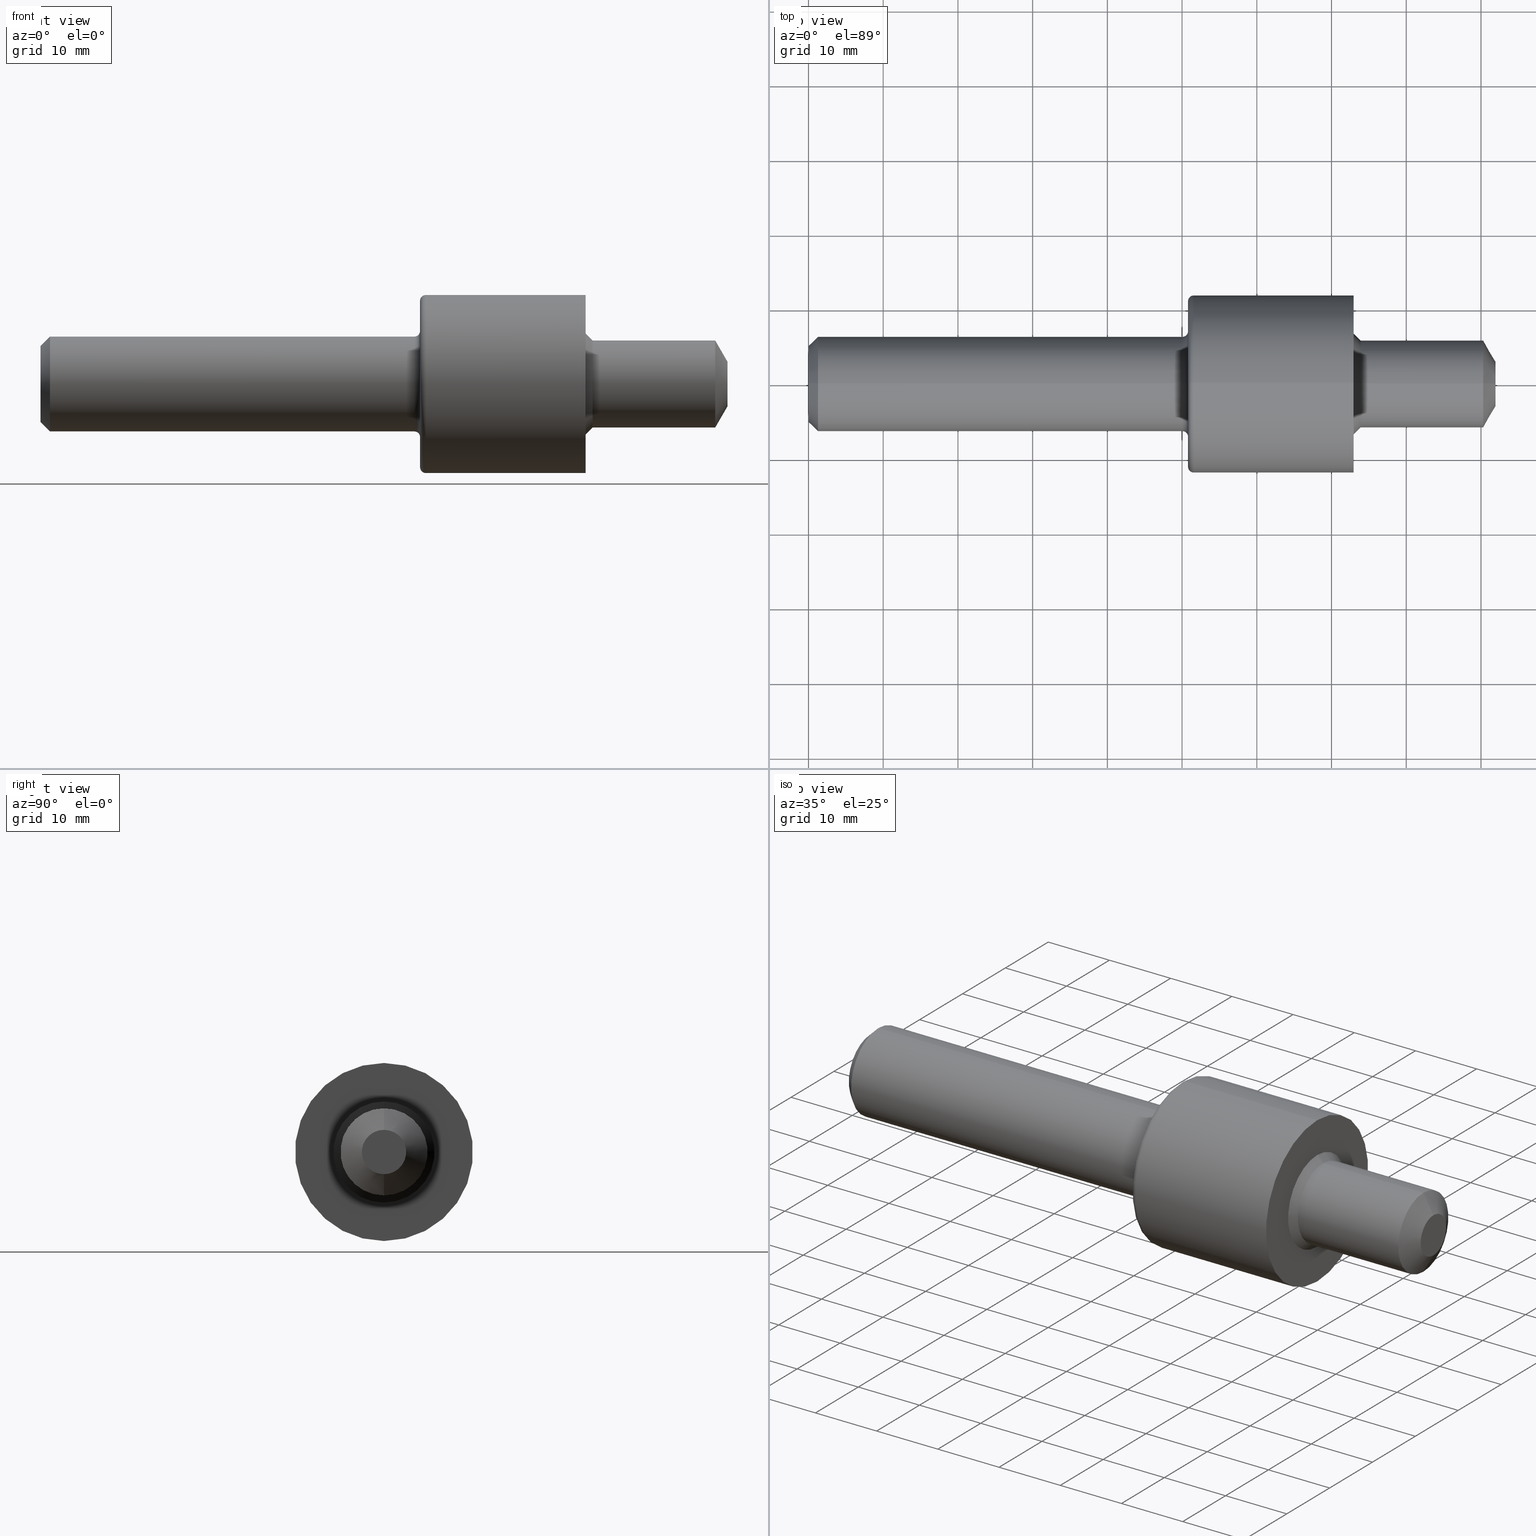
[diagram: canonical four-view strip — front | top / right | iso, engineering-drawing reading convention]
A machine part, canonical four-view strip (front | top / right | iso — engineering-drawing reading convention). The complete STEP part file that produces these views, byte-faithful:
ISO-10303-21;
HEADER;
FILE_DESCRIPTION (( 'STEP AP214' ),
    '1' );
FILE_NAME ('PT-BSPP-1_4.STEP',
    '2019-03-27T22:34:53',
    ( '' ),
    ( '' ),
    'SwSTEP 2.0',
    'SolidWorks 2018',
    '' );
FILE_SCHEMA (( 'AUTOMOTIVE_DESIGN' ));
ENDSEC;

DATA;
#1 = ADVANCED_FACE ( 'NONE', ( #53 ), #61, .T. ) ;
#2 = AXIS2_PLACEMENT_3D ( 'NONE', #414, #139, #249 ) ;
#3 = AXIS2_PLACEMENT_3D ( 'NONE', #476, #335, #393 ) ;
#4 = EDGE_CURVE ( 'NONE', #401, #381, #480, .T. ) ;
#5 = ADVANCED_FACE ( 'NONE', ( #369, #396 ), #73, .F. ) ;
#6 = LINE ( 'NONE', #479, #357 ) ;
#7 = CIRCLE ( 'NONE', #193, 0.1169166975080224158 ) ;
#8 = AXIS2_PLACEMENT_3D ( 'NONE', #16, #373, #233 ) ;
#9 = DIRECTION ( 'NONE',  ( -1.000000000000000000, -0.0000000000000000000, -0.0000000000000000000 ) ) ;
#10 = ADVANCED_FACE ( 'NONE', ( #262 ), #27, .T. ) ;
#11 = EDGE_CURVE ( 'NONE', #263, #323, #510, .T. ) ;
#12 = CARTESIAN_POINT ( 'NONE',  ( 0.0000000000000000000, 0.0000000000000000000, 0.0000000000000000000 ) ) ;
#13 = ADVANCED_FACE ( 'NONE', ( #382 ), #319, .F. ) ;
#14 = CARTESIAN_POINT ( 'NONE',  ( 2.871999999999999886, 5.743593488001086150E-17, -0.4689999999999999725 ) ) ;
#15 = AXIS2_PLACEMENT_3D ( 'NONE', #169, #213, #267 ) ;
#16 = CARTESIAN_POINT ( 'NONE',  ( 0.0000000000000000000, 0.0000000000000000000, 0.0000000000000000000 ) ) ;
#17 = ADVANCED_FACE ( 'NONE', ( #197, #415 ), #372, .F. ) ;
#18 = CIRCLE ( 'NONE', #92, 0.2498499999999999888 ) ;
#19 = ORIENTED_EDGE ( 'NONE', *, *, #227, .F. ) ;
#20 = DIRECTION ( 'NONE',  ( 0.0000000000000000000, -1.224646799147352221E-16, 1.000000000000000000 ) ) ;
#21 = DIRECTION ( 'NONE',  ( 0.0000000000000000000, 0.0000000000000000000, 1.000000000000000000 ) ) ;
#22 = ADVANCED_FACE ( 'NONE', ( #314 ), #124, .T. ) ;
#23 = EDGE_CURVE ( 'NONE', #385, #137, #441, .T. ) ;
#24 = AXIS2_PLACEMENT_3D ( 'NONE', #59, #150, #397 ) ;
#25 = CIRCLE ( 'NONE', #310, 0.2665000000000000147 ) ;
#26 = DIRECTION ( 'NONE',  ( 0.0000000000000000000, 0.0000000000000000000, 1.000000000000000000 ) ) ;
#27 = CONICAL_SURFACE ( 'NONE', #309, 0.1169166975080224158, 1.047197551196600074 ) ;
#28 = EDGE_LOOP ( 'NONE', ( #497, #289, #306, #259 ) ) ;
#29 = CARTESIAN_POINT ( 'NONE',  ( 3.555000000000000160, 2.810564404043175550E-17, -0.2295000000000000095 ) ) ;
#30 = ADVANCED_FACE ( 'NONE', ( #551 ), #295, .T. ) ;
#31 = ORIENTED_EDGE ( 'NONE', *, *, #463, .F. ) ;
#32 = SHAPE_DEFINITION_REPRESENTATION ( #214, #478 ) ;
#33 = CARTESIAN_POINT ( 'NONE',  ( 0.0000000000000000000, 0.0000000000000000000, 0.0000000000000000000 ) ) ;
#34 = CARTESIAN_POINT ( 'NONE',  ( 2.871999999999999886, 0.0000000000000000000, 0.0000000000000000000 ) ) ;
#35 = ORIENTED_EDGE ( 'NONE', *, *, #399, .F. ) ;
#36 = AXIS2_PLACEMENT_3D ( 'NONE', #173, #421, #559 ) ;
#37 = DIRECTION ( 'NONE',  ( 0.0000000000000000000, 0.0000000000000000000, -1.000000000000000000 ) ) ;
#38 = ORIENTED_EDGE ( 'NONE', *, *, #339, .T. ) ;
#39 = DIRECTION ( 'NONE',  ( -0.0000000000000000000, 0.0000000000000000000, 1.000000000000000000 ) ) ;
#40 = ORIENTED_EDGE ( 'NONE', *, *, #227, .T. ) ;
#41 = PLANE ( 'NONE',  #543 ) ;
#42 = ORIENTED_EDGE ( 'NONE', *, *, #220, .T. ) ;
#43 = DIRECTION ( 'NONE',  ( 0.0000000000000000000, 0.0000000000000000000, 1.000000000000000000 ) ) ;
#44 = AXIS2_PLACEMENT_3D ( 'NONE', #184, #301, #96 ) ;
#45 = CIRCLE ( 'NONE', #437, 0.2665000000000000147 ) ;
#46 = ADVANCED_FACE ( 'NONE', ( #312 ), #168, .T. ) ;
#47 = DIRECTION ( 'NONE',  ( 0.0000000000000000000, 0.0000000000000000000, 1.000000000000000000 ) ) ;
#48 = CARTESIAN_POINT ( 'NONE',  ( 0.05000000000000000278, 0.0000000000000000000, 0.0000000000000000000 ) ) ;
#49 = ORIENTED_EDGE ( 'NONE', *, *, #11, .F. ) ;
#50 = ADVANCED_FACE ( 'NONE', ( #192 ), #104, .T. ) ;
#51 = VERTEX_POINT ( 'NONE', #255 ) ;
#52 = CARTESIAN_POINT ( 'NONE',  ( 2.000000000000000000, 3.427174067413867695E-17, -0.2798499999999999877 ) ) ;
#53 = FACE_OUTER_BOUND ( 'NONE', #405, .T. ) ;
#54 = ORIENTED_EDGE ( 'NONE', *, *, #102, .T. ) ;
#55 = EDGE_CURVE ( 'NONE', #137, #385, #7, .T. ) ;
#56 = STYLED_ITEM ( 'NONE', ( #293 ), #478 ) ;
#57 = DIRECTION ( 'NONE',  ( 1.000000000000000000, 0.0000000000000000000, 0.0000000000000000000 ) ) ;
#58 = ADVANCED_FACE ( 'NONE', ( #509 ), #400, .T. ) ;
#59 = CARTESIAN_POINT ( 'NONE',  ( 2.000000000000000000, 0.0000000000000000000, 0.0000000000000000000 ) ) ;
#60 = ORIENTED_EDGE ( 'NONE', *, *, #246, .F. ) ;
#61 = TOROIDAL_SURFACE ( 'NONE', #44, 0.4389999999999999458, 0.02999999999999998848 ) ;
#62 = SURFACE_SIDE_STYLE ('',( #471 ) ) ;
#63 = CARTESIAN_POINT ( 'NONE',  ( 2.909000000000002029, 0.0000000000000000000, 0.2295000000000000095 ) ) ;
#64 = APPLICATION_CONTEXT ( 'automotive_design' ) ;
#65 = SURFACE_SIDE_STYLE ('',( #519 ) ) ;
#67 = CLOSED_SHELL ( 'NONE', ( #10, #58, #162, #50, #386, #348, #70, #557, #465, #534, #454, #13, #5, #1, #22, #17, #30, #552, #46, #85 ) ) ;
#66 = AXIS2_PLACEMENT_3D ( 'NONE', #76, #473, #226 ) ;
#68 = ORIENTED_EDGE ( 'NONE', *, *, #115, .T. ) ;
#69 = ORIENTED_EDGE ( 'NONE', *, *, #320, .F. ) ;
#70 = ADVANCED_FACE ( 'NONE', ( #241 ), #469, .T. ) ;
#71 =( CONVERSION_BASED_UNIT ( 'INCH', #439 ) LENGTH_UNIT ( ) NAMED_UNIT ( #101 ) );
#72 = CIRCLE ( 'NONE', #218, 0.2498499999999999888 ) ;
#73 = PLANE ( 'NONE',  #36 ) ;
#74 = VERTEX_POINT ( 'NONE', #547 ) ;
#75 = EDGE_CURVE ( 'NONE', #323, #263, #223, .T. ) ;
#76 = CARTESIAN_POINT ( 'NONE',  ( 2.029999999999999805, 0.0000000000000000000, 0.4389999999999999458 ) ) ;
#77 = AXIS2_PLACEMENT_3D ( 'NONE', #198, #174, #539 ) ;
#78 = ORIENTED_EDGE ( 'NONE', *, *, #55, .F. ) ;
#79 = DIRECTION ( 'NONE',  ( -1.000000000000000000, -0.0000000000000000000, -0.0000000000000000000 ) ) ;
#80 = AXIS2_PLACEMENT_3D ( 'NONE', #294, #321, #541 ) ;
#81 = CARTESIAN_POINT ( 'NONE',  ( 0.0000000000000000000, 0.0000000000000000000, 0.0000000000000000000 ) ) ;
#82 = FACE_OUTER_BOUND ( 'NONE', #346, .T. ) ;
#83 = ORIENTED_EDGE ( 'NONE', *, *, #87, .F. ) ;
#84 = DIRECTION ( 'NONE',  ( -1.000000000000000000, -0.0000000000000000000, -0.0000000000000000000 ) ) ;
#85 = ADVANCED_FACE ( 'NONE', ( #361 ), #41, .F. ) ;
#86 = CARTESIAN_POINT ( 'NONE',  ( 0.0000000000000000000, 0.0000000000000000000, 0.0000000000000000000 ) ) ;
#87 = EDGE_CURVE ( 'NONE', #383, #88, #98, .T. ) ;
#88 = VERTEX_POINT ( 'NONE', #311 ) ;
#89 = VERTEX_POINT ( 'NONE', #222 ) ;
#90 = CARTESIAN_POINT ( 'NONE',  ( 2.000000000000000000, 0.0000000000000000000, 0.0000000000000000000 ) ) ;
#91 = PRODUCT ( 'PT-BSPP-1_4', 'PT-BSPP-1_4', '', ( #356 ) ) ;
#92 = AXIS2_PLACEMENT_3D ( 'NONE', #403, #291, #546 ) ;
#93 = CARTESIAN_POINT ( 'NONE',  ( 3.555000000000000160, 0.0000000000000000000, 0.0000000000000000000 ) ) ;
#94 = CARTESIAN_POINT ( 'NONE',  ( 2.909000000000002029, 0.0000000000000000000, 0.0000000000000000000 ) ) ;
#95 = ORIENTED_EDGE ( 'NONE', *, *, #313, .T. ) ;
#96 = DIRECTION ( 'NONE',  ( 0.0000000000000000000, 0.0000000000000000000, 1.000000000000000000 ) ) ;
#97 = EDGE_CURVE ( 'NONE', #401, #270, #430, .T. ) ;
#98 = CIRCLE ( 'NONE', #211, 0.2498499999999999888 ) ;
#99 = DIRECTION ( 'NONE',  ( 0.0000000000000000000, 0.0000000000000000000, 1.000000000000000000 ) ) ;
#100 = EDGE_LOOP ( 'NONE', ( #556, #95, #154, #364 ) ) ;
#101 = DIMENSIONAL_EXPONENTS ( 1.000000000000000000, 0.0000000000000000000, 0.0000000000000000000, 0.0000000000000000000, 0.0000000000000000000, 0.0000000000000000000, 0.0000000000000000000 ) ;
#102 = EDGE_CURVE ( 'NONE', #527, #248, #210, .T. ) ;
#103 = ORIENTED_EDGE ( 'NONE', *, *, #152, .F. ) ;
#104 = CYLINDRICAL_SURFACE ( 'NONE', #503, 0.4689999999999999725 ) ;
#105 = DIMENSIONAL_EXPONENTS ( 1.000000000000000000, 0.0000000000000000000, 0.0000000000000000000, 0.0000000000000000000, 0.0000000000000000000, 0.0000000000000000000, 0.0000000000000000000 ) ;
#106 = DIRECTION ( 'NONE',  ( -1.000000000000000000, -0.0000000000000000000, -0.0000000000000000000 ) ) ;
#107 = VERTEX_POINT ( 'NONE', #243 ) ;
#108 = ORIENTED_EDGE ( 'NONE', *, *, #484, .F. ) ;
#109 = EDGE_LOOP ( 'NONE', ( #129, #119, #277, #194 ) ) ;
#110 = EDGE_CURVE ( 'NONE', #107, #381, #133, .T. ) ;
#111 = CARTESIAN_POINT ( 'NONE',  ( 0.05000000000000000278, 3.059780027669661931E-17, 0.2498499999999999888 ) ) ;
#112 = AXIS2_PLACEMENT_3D ( 'NONE', #81, #302, #460 ) ;
#113 = LINE ( 'NONE', #161, #410 ) ;
#114 = FILL_AREA_STYLE_COLOUR ( '', #336 ) ;
#115 = EDGE_CURVE ( 'NONE', #272, #89, #341, .T. ) ;
#116 = ORIENTED_EDGE ( 'NONE', *, *, #376, .T. ) ;
#117 = DIRECTION ( 'NONE',  ( 0.0000000000000000000, 0.0000000000000000000, 1.000000000000000000 ) ) ;
#118 = APPLICATION_PROTOCOL_DEFINITION ( 'draft international standard', 'automotive_design', 1998, #64 ) ;
#119 = ORIENTED_EDGE ( 'NONE', *, *, #470, .T. ) ;
#120 = LINE ( 'NONE', #254, #328 ) ;
#121 = DIRECTION ( 'NONE',  ( 1.000000000000000000, 0.0000000000000000000, 0.0000000000000000000 ) ) ;
#122 = ORIENTED_EDGE ( 'NONE', *, *, #389, .T. ) ;
#123 = DIRECTION ( 'NONE',  ( -1.000000000000000000, -0.0000000000000000000, -0.0000000000000000000 ) ) ;
#124 = CYLINDRICAL_SURFACE ( 'NONE', #251, 0.4689999999999999725 ) ;
#125 = CARTESIAN_POINT ( 'NONE',  ( 3.620000000000000107, 0.1169166975080224158, 0.0000000000000000000 ) ) ;
#126 = VERTEX_POINT ( 'NONE', #409 ) ;
#127 = DIRECTION ( 'NONE',  ( -1.000000000000000000, -0.0000000000000000000, -0.0000000000000000000 ) ) ;
#128 = DIRECTION ( 'NONE',  ( 1.000000000000000000, 0.0000000000000000000, 0.0000000000000000000 ) ) ;
#129 = ORIENTED_EDGE ( 'NONE', *, *, #463, .T. ) ;
#130 = DIRECTION ( 'NONE',  ( -1.000000000000000000, -0.0000000000000000000, -0.0000000000000000000 ) ) ;
#131 = DIRECTION ( 'NONE',  ( -1.000000000000000000, -0.0000000000000000000, -0.0000000000000000000 ) ) ;
#132 = DIRECTION ( 'NONE',  ( 0.0000000000000000000, 0.0000000000000000000, 1.000000000000000000 ) ) ;
#133 = CIRCLE ( 'NONE', #164, 0.4689999999999999725 ) ;
#134 = AXIS2_PLACEMENT_3D ( 'NONE', #490, #417, #318 ) ;
#135 = MECHANICAL_DESIGN_GEOMETRIC_PRESENTATION_REPRESENTATION (  '', ( #280 ), #171 ) ;
#136 = ORIENTED_EDGE ( 'NONE', *, *, #196, .F. ) ;
#137 = VERTEX_POINT ( 'NONE', #440 ) ;
#138 = CIRCLE ( 'NONE', #380, 0.2498499999999999888 ) ;
#139 = DIRECTION ( 'NONE',  ( -1.000000000000000000, -0.0000000000000000000, -0.0000000000000000000 ) ) ;
#140 = EDGE_CURVE ( 'NONE', #381, #51, #494, .T. ) ;
#141 = DIMENSIONAL_EXPONENTS ( 1.000000000000000000, 0.0000000000000000000, 0.0000000000000000000, 0.0000000000000000000, 0.0000000000000000000, 0.0000000000000000000, 0.0000000000000000000 ) ;
#142 = EDGE_LOOP ( 'NONE', ( #69, #31, #40, #54 ) ) ;
#143 = DIRECTION ( 'NONE',  ( 0.0000000000000000000, 0.0000000000000000000, 1.000000000000000000 ) ) ;
#144 = DIRECTION ( 'NONE',  ( -1.000000000000000000, -0.0000000000000000000, -0.0000000000000000000 ) ) ;
#145 = AXIS2_PLACEMENT_3D ( 'NONE', #86, #299, #47 ) ;
#146 = DIRECTION ( 'NONE',  ( -0.4999999999999979461, 1.060575238724908024E-16, -0.8660254037844397068 ) ) ;
#147 = EDGE_LOOP ( 'NONE', ( #296, #436, #42, #202 ) ) ;
#148 = EDGE_CURVE ( 'NONE', #381, #107, #353, .T. ) ;
#149 = EDGE_LOOP ( 'NONE', ( #35, #179, #38, #350 ) ) ;
#150 = DIRECTION ( 'NONE',  ( -1.000000000000000000, -0.0000000000000000000, -0.0000000000000000000 ) ) ;
#151 = VECTOR ( 'NONE', #537, 39.37007874015748143 ) ;
#152 = EDGE_CURVE ( 'NONE', #504, #207, #487, .T. ) ;
#153 = ORIENTED_EDGE ( 'NONE', *, *, #115, .F. ) ;
#154 = ORIENTED_EDGE ( 'NONE', *, *, #269, .F. ) ;
#155 = TOROIDAL_SURFACE ( 'NONE', #362, 0.4389999999999999458, 0.02999999999999998848 ) ;
#156 = VECTOR ( 'NONE', #333, 39.37007874015748143 ) ;
#157 = EDGE_CURVE ( 'NONE', #270, #401, #166, .T. ) ;
#158 = EDGE_LOOP ( 'NONE', ( #544, #379, #521, #60 ) ) ;
#159 = FACE_OUTER_BOUND ( 'NONE', #158, .T. ) ;
#160 = ORIENTED_EDGE ( 'NONE', *, *, #75, .T. ) ;
#161 = CARTESIAN_POINT ( 'NONE',  ( 0.0000000000000000000, 2.810564404043175550E-17, -0.2295000000000000095 ) ) ;
#162 = ADVANCED_FACE ( 'NONE', ( #305 ), #288, .T. ) ;
#163 = ORIENTED_EDGE ( 'NONE', *, *, #110, .T. ) ;
#164 = AXIS2_PLACEMENT_3D ( 'NONE', #514, #495, #502 ) ;
#165 = CIRCLE ( 'NONE', #445, 0.2295000000000000095 ) ;
#166 = CIRCLE ( 'NONE', #134, 0.4689999999999999725 ) ;
#167 = ORIENTED_EDGE ( 'NONE', *, *, #157, .F. ) ;
#168 = CONICAL_SURFACE ( 'NONE', #475, 0.1169166975080224158, 1.047197551196600074 ) ;
#169 = CARTESIAN_POINT ( 'NONE',  ( 0.0000000000000000000, 0.0000000000000000000, 0.0000000000000000000 ) ) ;
#170 = CIRCLE ( 'NONE', #283, 0.2798499999999999877 ) ;
#171 =( GEOMETRIC_REPRESENTATION_CONTEXT ( 3 ) GLOBAL_UNCERTAINTY_ASSIGNED_CONTEXT ( ( #281 ) ) GLOBAL_UNIT_ASSIGNED_CONTEXT ( ( #524, #529, #498 ) ) REPRESENTATION_CONTEXT ( 'NONE', 'WORKASPACE' ) );
#172 = CARTESIAN_POINT ( 'NONE',  ( 0.05000000000000000278, 3.059780027669661931E-17, 0.2498499999999999888 ) ) ;
#173 = CARTESIAN_POINT ( 'NONE',  ( 2.000000000000000000, 0.4389999999999999458, 0.0000000000000000000 ) ) ;
#174 = DIRECTION ( 'NONE',  ( -1.000000000000000000, -0.0000000000000000000, -0.0000000000000000000 ) ) ;
#175 = AXIS2_PLACEMENT_3D ( 'NONE', #512, #131, #538 ) ;
#176 = VECTOR ( 'NONE', #183, 39.37007874015748143 ) ;
#177 = ORIENTED_EDGE ( 'NONE', *, *, #349, .F. ) ;
#178 = CARTESIAN_POINT ( 'NONE',  ( 0.0000000000000000000, 0.0000000000000000000, 0.2295000000000000095 ) ) ;
#179 = ORIENTED_EDGE ( 'NONE', *, *, #152, .T. ) ;
#180 = ORIENTED_EDGE ( 'NONE', *, *, #438, .F. ) ;
#181 = EDGE_LOOP ( 'NONE', ( #428, #266 ) ) ;
#182 = CARTESIAN_POINT ( 'NONE',  ( 3.620000000000000107, 0.0000000000000000000, 0.0000000000000000000 ) ) ;
#183 = DIRECTION ( 'NONE',  ( -1.000000000000000000, -0.0000000000000000000, -0.0000000000000000000 ) ) ;
#184 = CARTESIAN_POINT ( 'NONE',  ( 2.029999999999999805, 0.0000000000000000000, 0.0000000000000000000 ) ) ;
#185 = ORIENTED_EDGE ( 'NONE', *, *, #332, .T. ) ;
#186 = AXIS2_PLACEMENT_3D ( 'NONE', #429, #513, #39 ) ;
#187 = EDGE_CURVE ( 'NONE', #270, #107, #188, .T. ) ;
#188 = LINE ( 'NONE', #404, #422 ) ;
#189 = ORIENTED_EDGE ( 'NONE', *, *, #339, .F. ) ;
#190 = ORIENTED_EDGE ( 'NONE', *, *, #140, .T. ) ;
#191 = AXIS2_PLACEMENT_3D ( 'NONE', #458, #121, #464 ) ;
#192 = FACE_OUTER_BOUND ( 'NONE', #359, .T. ) ;
#193 = AXIS2_PLACEMENT_3D ( 'NONE', #508, #199, #418 ) ;
#194 = ORIENTED_EDGE ( 'NONE', *, *, #365, .F. ) ;
#195 = DIRECTION ( 'NONE',  ( -0.0000000000000000000, 1.000000000000000000, 1.224646799147353207E-16 ) ) ;
#196 = EDGE_CURVE ( 'NONE', #385, #272, #6, .T. ) ;
#197 = FACE_OUTER_BOUND ( 'NONE', #435, .T. ) ;
#198 = CARTESIAN_POINT ( 'NONE',  ( 0.0000000000000000000, 0.0000000000000000000, 0.0000000000000000000 ) ) ;
#199 = DIRECTION ( 'NONE',  ( -1.000000000000000000, -0.0000000000000000000, -0.0000000000000000000 ) ) ;
#200 = FILL_AREA_STYLE_COLOUR ( '', #229 ) ;
#201 = AXIS2_PLACEMENT_3D ( 'NONE', #354, #128, #278 ) ;
#202 = ORIENTED_EDGE ( 'NONE', *, *, #246, .T. ) ;
#203 = DIRECTION ( 'NONE',  ( 0.0000000000000000000, 0.0000000000000000000, 1.000000000000000000 ) ) ;
#204 = DIRECTION ( 'NONE',  ( -1.000000000000000000, -0.0000000000000000000, -0.0000000000000000000 ) ) ;
#205 =( LENGTH_UNIT ( ) NAMED_UNIT ( * ) SI_UNIT ( $, .METRE. ) );
#206 = CONICAL_SURFACE ( 'NONE', #201, 0.2498499999999999888, 0.7853981633974463916 ) ;
#207 = VERTEX_POINT ( 'NONE', #322 ) ;
#208 = DIRECTION ( 'NONE',  ( 0.0000000000000000000, 0.0000000000000000000, 1.000000000000000000 ) ) ;
#209 = DIRECTION ( 'NONE',  ( 0.0000000000000000000, 0.0000000000000000000, 1.000000000000000000 ) ) ;
#210 = CIRCLE ( 'NONE', #419, 0.2798499999999999877 ) ;
#211 = AXIS2_PLACEMENT_3D ( 'NONE', #232, #230, #489 ) ;
#212 = EDGE_LOOP ( 'NONE', ( #525, #68, #122, #103 ) ) ;
#213 = DIRECTION ( 'NONE',  ( -1.000000000000000000, -0.0000000000000000000, -0.0000000000000000000 ) ) ;
#214 = PRODUCT_DEFINITION_SHAPE ( 'NONE', 'NONE',  #459 ) ;
#215 = VERTEX_POINT ( 'NONE', #265 ) ;
#216 = DIRECTION ( 'NONE',  ( 0.0000000000000000000, 0.0000000000000000000, 1.000000000000000000 ) ) ;
#217 = ORIENTED_EDGE ( 'NONE', *, *, #187, .F. ) ;
#218 = AXIS2_PLACEMENT_3D ( 'NONE', #48, #560, #216 ) ;
#219 = DIRECTION ( 'NONE',  ( 0.0000000000000000000, 0.0000000000000000000, 1.000000000000000000 ) ) ;
#220 = EDGE_CURVE ( 'NONE', #323, #215, #516, .T. ) ;
#221 = ORIENTED_EDGE ( 'NONE', *, *, #399, .T. ) ;
#222 = CARTESIAN_POINT ( 'NONE',  ( 3.555000000000000160, 0.0000000000000000000, 0.2295000000000000095 ) ) ;
#223 = CIRCLE ( 'NONE', #145, 0.1998500000000001942 ) ;
#224 = FACE_OUTER_BOUND ( 'NONE', #28, .T. ) ;
#225 = UNCERTAINTY_MEASURE_WITH_UNIT (LENGTH_MEASURE( 1.000000000000000082E-05 ), #377, 'distance_accuracy_value', 'NONE');
#226 = DIRECTION ( 'NONE',  ( 0.0000000000000000000, 0.0000000000000000000, -1.000000000000000000 ) ) ;
#227 = EDGE_CURVE ( 'NONE', #88, #527, #481, .T. ) ;
#228 = PRESENTATION_LAYER_ASSIGNMENT (  '', '', ( #280 ) ) ;
#229 = COLOUR_RGB ( '',0.7529411764705882248, 0.7529411764705882248, 0.7529411764705882248 ) ;
#230 = DIRECTION ( 'NONE',  ( -1.000000000000000000, -0.0000000000000000000, -0.0000000000000000000 ) ) ;
#231 = ORIENTED_EDGE ( 'NONE', *, *, #438, .T. ) ;
#232 = CARTESIAN_POINT ( 'NONE',  ( 1.969999999999999973, 0.0000000000000000000, 0.0000000000000000000 ) ) ;
#233 = DIRECTION ( 'NONE',  ( 1.000000000000000000, 0.0000000000000000000, 0.0000000000000000000 ) ) ;
#234 = DIRECTION ( 'NONE',  ( 0.7071067811865489050, 8.659560562354915602E-17, 0.7071067811865461294 ) ) ;
#235 = ORIENTED_EDGE ( 'NONE', *, *, #548, .F. ) ;
#236 = DIRECTION ( 'NONE',  ( -1.000000000000000000, -0.0000000000000000000, -0.0000000000000000000 ) ) ;
#237 = AXIS2_PLACEMENT_3D ( 'NONE', #342, #518, #37 ) ;
#238 = DIRECTION ( 'NONE',  ( -1.000000000000000000, -0.0000000000000000000, -0.0000000000000000000 ) ) ;
#239 = EDGE_LOOP ( 'NONE', ( #78, #523 ) ) ;
#240 = ORIENTED_EDGE ( 'NONE', *, *, #269, .T. ) ;
#241 = FACE_OUTER_BOUND ( 'NONE', #109, .T. ) ;
#242 =( NAMED_UNIT ( * ) SI_UNIT ( $, .STERADIAN. ) SOLID_ANGLE_UNIT ( ) );
#243 = CARTESIAN_POINT ( 'NONE',  ( 2.029999999999999805, 5.743593488001086150E-17, -0.4689999999999999725 ) ) ;
#244 = DIRECTION ( 'NONE',  ( -1.000000000000000000, -0.0000000000000000000, -0.0000000000000000000 ) ) ;
#245 =( LENGTH_UNIT ( ) NAMED_UNIT ( * ) SI_UNIT ( $, .METRE. ) );
#246 = EDGE_CURVE ( 'NONE', #215, #562, #72, .T. ) ;
#247 = DIRECTION ( 'NONE',  ( -1.000000000000000000, -0.0000000000000000000, -0.0000000000000000000 ) ) ;
#248 = VERTEX_POINT ( 'NONE', #52 ) ;
#249 = DIRECTION ( 'NONE',  ( 0.0000000000000000000, 0.0000000000000000000, 1.000000000000000000 ) ) ;
#250 = SURFACE_STYLE_USAGE ( .BOTH. , #62 ) ;
#251 = AXIS2_PLACEMENT_3D ( 'NONE', #33, #505, #219 ) ;
#252 = PRESENTATION_LAYER_ASSIGNMENT (  '', '', ( #56 ) ) ;
#253 = ORIENTED_EDGE ( 'NONE', *, *, #157, .T. ) ;
#254 = CARTESIAN_POINT ( 'NONE',  ( 0.0000000000000000000, 0.0000000000000000000, 0.2498499999999999888 ) ) ;
#255 = CARTESIAN_POINT ( 'NONE',  ( 2.000000000000000000, 0.0000000000000000000, 0.4389999999999999458 ) ) ;
#256 = CARTESIAN_POINT ( 'NONE',  ( 0.0000000000000000000, 0.0000000000000000000, -0.1998500000000001942 ) ) ;
#257 = CARTESIAN_POINT ( 'NONE',  ( 3.620000000000000107, 0.0000000000000000000, 0.0000000000000000000 ) ) ;
#258 = EDGE_CURVE ( 'NONE', #562, #215, #138, .T. ) ;
#259 = ORIENTED_EDGE ( 'NONE', *, *, #140, .F. ) ;
#260 = DIRECTION ( 'NONE',  ( 0.0000000000000000000, 0.0000000000000000000, 1.000000000000000000 ) ) ;
#261 = FACE_OUTER_BOUND ( 'NONE', #212, .T. ) ;
#262 = FACE_OUTER_BOUND ( 'NONE', #424, .T. ) ;
#263 = VERTEX_POINT ( 'NONE', #499 ) ;
#264 = EDGE_CURVE ( 'NONE', #51, #303, #457, .T. ) ;
#265 = CARTESIAN_POINT ( 'NONE',  ( 0.05000000000000000278, 0.0000000000000000000, -0.2498499999999999888 ) ) ;
#266 = ORIENTED_EDGE ( 'NONE', *, *, #432, .T. ) ;
#267 = DIRECTION ( 'NONE',  ( 0.0000000000000000000, 0.0000000000000000000, 1.000000000000000000 ) ) ;
#268 = ORIENTED_EDGE ( 'NONE', *, *, #55, .T. ) ;
#269 = EDGE_CURVE ( 'NONE', #207, #504, #374, .T. ) ;
#270 = VERTEX_POINT ( 'NONE', #14 ) ;
#271 = VECTOR ( 'NONE', #462, 39.37007874015748143 ) ;
#272 = VERTEX_POINT ( 'NONE', #29 ) ;
#273 = ORIENTED_EDGE ( 'NONE', *, *, #187, .T. ) ;
#274 = CARTESIAN_POINT ( 'NONE',  ( 2.909000000000002029, 2.810564404043175550E-17, -0.2295000000000000095 ) ) ;
#275 = CARTESIAN_POINT ( 'NONE',  ( 2.871999999999999886, 0.0000000000000000000, 0.0000000000000000000 ) ) ;
#276 = DIRECTION ( 'NONE',  ( -1.000000000000000000, -0.0000000000000000000, -0.0000000000000000000 ) ) ;
#277 = ORIENTED_EDGE ( 'NONE', *, *, #258, .F. ) ;
#278 = DIRECTION ( 'NONE',  ( 0.0000000000000000000, 0.0000000000000000000, -1.000000000000000000 ) ) ;
#279 = CIRCLE ( 'NONE', #3, 0.02999999999999998848 ) ;
#280 = STYLED_ITEM ( 'NONE', ( #466 ), #549 ) ;
#281 = UNCERTAINTY_MEASURE_WITH_UNIT (LENGTH_MEASURE( 1.000000000000000082E-05 ), #524, 'distance_accuracy_value', 'NONE');
#282 = VECTOR ( 'NONE', #561, 39.37007874015748143 ) ;
#283 = AXIS2_PLACEMENT_3D ( 'NONE', #554, #550, #143 ) ;
#284 =( LENGTH_UNIT ( ) NAMED_UNIT ( * ) SI_UNIT ( $, .METRE. ) );
#285 = LENGTH_MEASURE_WITH_UNIT ( LENGTH_MEASURE( 0.02539999999999999897 ), #205 );
#286 = CARTESIAN_POINT ( 'NONE',  ( 3.620000000000000107, 2.121190498871982777E-17, -0.1169166975080224158 ) ) ;
#287 = TOROIDAL_SURFACE ( 'NONE', #420, 0.2798499999999999877, 0.02999999999999997113 ) ;
#288 = CONICAL_SURFACE ( 'NONE', #175, 0.2295000000000000095, 0.7853981633974163046 ) ;
#289 = ORIENTED_EDGE ( 'NONE', *, *, #548, .T. ) ;
#290 = AXIS2_PLACEMENT_3D ( 'NONE', #485, #57, #442 ) ;
#291 = DIRECTION ( 'NONE',  ( -1.000000000000000000, -0.0000000000000000000, -0.0000000000000000000 ) ) ;
#292 = LINE ( 'NONE', #366, #375 ) ;
#293 = PRESENTATION_STYLE_ASSIGNMENT (( #448 ) ) ;
#294 = CARTESIAN_POINT ( 'NONE',  ( 2.029999999999999805, 0.0000000000000000000, 0.0000000000000000000 ) ) ;
#295 = CONICAL_SURFACE ( 'NONE', #360, 0.2295000000000000095, 0.7853981633974163046 ) ;
#296 = ORIENTED_EDGE ( 'NONE', *, *, #496, .F. ) ;
#297 = CARTESIAN_POINT ( 'NONE',  ( 0.0000000000000000000, 0.0000000000000000000, 0.4689999999999999725 ) ) ;
#298 = PRODUCT_DEFINITION_CONTEXT ( 'detailed design', #64, 'design' ) ;
#299 = DIRECTION ( 'NONE',  ( -1.000000000000000000, -0.0000000000000000000, -0.0000000000000000000 ) ) ;
#300 = CARTESIAN_POINT ( 'NONE',  ( 3.620000000000000107, 0.0000000000000000000, 0.1169166975080224158 ) ) ;
#301 = DIRECTION ( 'NONE',  ( -1.000000000000000000, -0.0000000000000000000, -0.0000000000000000000 ) ) ;
#302 = DIRECTION ( 'NONE',  ( -1.000000000000000000, -0.0000000000000000000, -0.0000000000000000000 ) ) ;
#303 = VERTEX_POINT ( 'NONE', #345 ) ;
#304 = ORIENTED_EDGE ( 'NONE', *, *, #332, .F. ) ;
#305 = FACE_OUTER_BOUND ( 'NONE', #423, .T. ) ;
#306 = ORIENTED_EDGE ( 'NONE', *, *, #264, .F. ) ;
#307 = CARTESIAN_POINT ( 'NONE',  ( 2.029999999999999805, 0.0000000000000000000, 0.4689999999999999725 ) ) ;
#308 = EDGE_LOOP ( 'NONE', ( #136, #326, #116, #153 ) ) ;
#309 = AXIS2_PLACEMENT_3D ( 'NONE', #182, #127, #99 ) ;
#310 = AXIS2_PLACEMENT_3D ( 'NONE', #34, #395, #358 ) ;
#311 = CARTESIAN_POINT ( 'NONE',  ( 1.969999999999999973, 0.0000000000000000000, 0.2498499999999999888 ) ) ;
#312 = FACE_OUTER_BOUND ( 'NONE', #308, .T. ) ;
#313 = EDGE_CURVE ( 'NONE', #272, #504, #113, .T. ) ;
#314 = FACE_OUTER_BOUND ( 'NONE', #368, .T. ) ;
#315 = DIRECTION ( 'NONE',  ( -0.4999999999999979461, 0.0000000000000000000, 0.8660254037844397068 ) ) ;
#316 = AXIS2_PLACEMENT_3D ( 'NONE', #90, #84, #384 ) ;
#317 = ORIENTED_EDGE ( 'NONE', *, *, #110, .F. ) ;
#318 = DIRECTION ( 'NONE',  ( 0.0000000000000000000, 0.0000000000000000000, 1.000000000000000000 ) ) ;
#319 = TOROIDAL_SURFACE ( 'NONE', #388, 0.2798499999999999877, 0.02999999999999997113 ) ;
#320 = EDGE_CURVE ( 'NONE', #383, #248, #279, .T. ) ;
#321 = DIRECTION ( 'NONE',  ( -1.000000000000000000, -0.0000000000000000000, -0.0000000000000000000 ) ) ;
#322 = CARTESIAN_POINT ( 'NONE',  ( 2.909000000000002029, 0.0000000000000000000, 0.2295000000000000095 ) ) ;
#323 = VERTEX_POINT ( 'NONE', #256 ) ;
#324 = DIRECTION ( 'NONE',  ( -1.000000000000000000, -0.0000000000000000000, -0.0000000000000000000 ) ) ;
#325 = CARTESIAN_POINT ( 'NONE',  ( 0.05000000000000000278, 0.0000000000000000000, -0.2498499999999999888 ) ) ;
#326 = ORIENTED_EDGE ( 'NONE', *, *, #23, .T. ) ;
#327 = FILL_AREA_STYLE ('',( #200 ) ) ;
#328 = VECTOR ( 'NONE', #236, 39.37007874015748143 ) ;
#329 = DIRECTION ( 'NONE',  ( -1.000000000000000000, -0.0000000000000000000, -0.0000000000000000000 ) ) ;
#330 = APPLICATION_PROTOCOL_DEFINITION ( 'draft international standard', 'automotive_design', 1998, #351 ) ;
#331 = CARTESIAN_POINT ( 'NONE',  ( 2.871999999999999886, 0.0000000000000000000, 0.0000000000000000000 ) ) ;
#332 = EDGE_CURVE ( 'NONE', #248, #527, #170, .T. ) ;
#333 = DIRECTION ( 'NONE',  ( 0.7071067811865489050, 0.0000000000000000000, -0.7071067811865461294 ) ) ;
#334 = CARTESIAN_POINT ( 'NONE',  ( 1.969999999999999973, 0.0000000000000000000, 0.0000000000000000000 ) ) ;
#335 = DIRECTION ( 'NONE',  ( -0.0000000000000000000, 1.000000000000000000, 1.224646799147353207E-16 ) ) ;
#336 = COLOUR_RGB ( '',0.7529411764705882248, 0.7529411764705882248, 0.7529411764705882248 ) ;
#337 =( NAMED_UNIT ( * ) SI_UNIT ( $, .STERADIAN. ) SOLID_ANGLE_UNIT ( ) );
#338 = AXIS2_PLACEMENT_3D ( 'NONE', #331, #563, #260 ) ;
#339 = EDGE_CURVE ( 'NONE', #207, #126, #506, .T. ) ;
#340 = AXIS2_PLACEMENT_3D ( 'NONE', #426, #123, #208 ) ;
#341 = CIRCLE ( 'NONE', #517, 0.2295000000000000095 ) ;
#342 = CARTESIAN_POINT ( 'NONE',  ( 1.969999999999999973, 0.0000000000000000000, 0.2798499999999999877 ) ) ;
#343 = ORIENTED_EDGE ( 'NONE', *, *, #4, .F. ) ;
#344 = DIRECTION ( 'NONE',  ( -1.000000000000000000, -0.0000000000000000000, -0.0000000000000000000 ) ) ;
#345 = CARTESIAN_POINT ( 'NONE',  ( 2.000000000000000000, 5.559896468128982343E-17, -0.4389999999999999458 ) ) ;
#346 = EDGE_LOOP ( 'NONE', ( #160, #392 ) ) ;
#347 = ORIENTED_EDGE ( 'NONE', *, *, #4, .T. ) ;
#348 = ADVANCED_FACE ( 'NONE', ( #491 ), #287, .F. ) ;
#349 = EDGE_CURVE ( 'NONE', #89, #272, #165, .T. ) ;
#350 = ORIENTED_EDGE ( 'NONE', *, *, #432, .F. ) ;
#351 = APPLICATION_CONTEXT ( 'automotive_design' ) ;
#352 = FACE_OUTER_BOUND ( 'NONE', #147, .T. ) ;
#353 = CIRCLE ( 'NONE', #80, 0.4689999999999999725 ) ;
#354 = CARTESIAN_POINT ( 'NONE',  ( 0.05000000000000000278, 0.0000000000000000000, 0.0000000000000000000 ) ) ;
#355 = CARTESIAN_POINT ( 'NONE',  ( 0.05000000000000000278, 0.0000000000000000000, 0.0000000000000000000 ) ) ;
#356 = PRODUCT_CONTEXT ( 'NONE', #351, 'mechanical' ) ;
#357 = VECTOR ( 'NONE', #146, 39.37007874015748854 ) ;
#358 = DIRECTION ( 'NONE',  ( 0.0000000000000000000, 0.0000000000000000000, 1.000000000000000000 ) ) ;
#359 = EDGE_LOOP ( 'NONE', ( #461, #273, #536, #343 ) ) ;
#360 = AXIS2_PLACEMENT_3D ( 'NONE', #94, #329, #117 ) ;
#361 = FACE_OUTER_BOUND ( 'NONE', #239, .T. ) ;
#362 = AXIS2_PLACEMENT_3D ( 'NONE', #407, #444, #21 ) ;
#363 = CYLINDRICAL_SURFACE ( 'NONE', #553, 0.2498499999999999888 ) ;
#364 = ORIENTED_EDGE ( 'NONE', *, *, #389, .F. ) ;
#365 = EDGE_CURVE ( 'NONE', #88, #562, #120, .T. ) ;
#366 = CARTESIAN_POINT ( 'NONE',  ( 0.0000000000000000000, 3.059780027669661931E-17, -0.2498499999999999888 ) ) ;
#367 = DIRECTION ( 'NONE',  ( -1.000000000000000000, -0.0000000000000000000, -0.0000000000000000000 ) ) ;
#368 = EDGE_LOOP ( 'NONE', ( #217, #253, #347, #317 ) ) ;
#369 = FACE_BOUND ( 'NONE', #447, .T. ) ;
#370 = CARTESIAN_POINT ( 'NONE',  ( 2.000000000000000000, 0.0000000000000000000, 0.2798499999999999877 ) ) ;
#371 = AXIS2_PLACEMENT_3D ( 'NONE', #492, #195, #20 ) ;
#372 = PLANE ( 'NONE',  #186 ) ;
#373 = DIRECTION ( 'NONE',  ( 0.0000000000000000000, 0.0000000000000000000, 1.000000000000000000 ) ) ;
#374 = CIRCLE ( 'NONE', #340, 0.2295000000000000095 ) ;
#375 = VECTOR ( 'NONE', #79, 39.37007874015748143 ) ;
#376 = EDGE_CURVE ( 'NONE', #137, #89, #425, .T. ) ;
#377 =( CONVERSION_BASED_UNIT ( 'INCH', #452 ) LENGTH_UNIT ( ) NAMED_UNIT ( #141 ) );
#378 = CIRCLE ( 'NONE', #24, 0.4389999999999999458 ) ;
#379 = ORIENTED_EDGE ( 'NONE', *, *, #87, .T. ) ;
#380 = AXIS2_PLACEMENT_3D ( 'NONE', #355, #367, #520 ) ;
#381 = VERTEX_POINT ( 'NONE', #307 ) ;
#382 = FACE_OUTER_BOUND ( 'NONE', #142, .T. ) ;
#383 = VERTEX_POINT ( 'NONE', #412 ) ;
#384 = DIRECTION ( 'NONE',  ( 0.0000000000000000000, 0.0000000000000000000, 1.000000000000000000 ) ) ;
#385 = VERTEX_POINT ( 'NONE', #286 ) ;
#386 = ADVANCED_FACE ( 'NONE', ( #224 ), #155, .T. ) ;
#387 = CARTESIAN_POINT ( 'NONE',  ( 1.969999999999999973, 0.0000000000000000000, 0.0000000000000000000 ) ) ;
#388 = AXIS2_PLACEMENT_3D ( 'NONE', #334, #144, #26 ) ;
#389 = EDGE_CURVE ( 'NONE', #89, #207, #511, .T. ) ;
#390 =( GEOMETRIC_REPRESENTATION_CONTEXT ( 3 ) GLOBAL_UNCERTAINTY_ASSIGNED_CONTEXT ( ( #528 ) ) GLOBAL_UNIT_ASSIGNED_CONTEXT ( ( #71, #416, #337 ) ) REPRESENTATION_CONTEXT ( 'NONE', 'WORKASPACE' ) );
#391 = DIRECTION ( 'NONE',  ( -0.0000000000000000000, 0.0000000000000000000, 1.000000000000000000 ) ) ;
#392 = ORIENTED_EDGE ( 'NONE', *, *, #11, .T. ) ;
#393 = DIRECTION ( 'NONE',  ( 0.0000000000000000000, -1.224646799147352221E-16, 1.000000000000000000 ) ) ;
#394 = ORIENTED_EDGE ( 'NONE', *, *, #196, .T. ) ;
#395 = DIRECTION ( 'NONE',  ( -1.000000000000000000, -0.0000000000000000000, -0.0000000000000000000 ) ) ;
#396 = FACE_OUTER_BOUND ( 'NONE', #411, .T. ) ;
#397 = DIRECTION ( 'NONE',  ( 0.0000000000000000000, 0.0000000000000000000, 1.000000000000000000 ) ) ;
#398 = DIRECTION ( 'NONE',  ( 0.0000000000000000000, 0.0000000000000000000, 1.000000000000000000 ) ) ;
#399 = EDGE_CURVE ( 'NONE', #504, #74, #472, .T. ) ;
#400 = CYLINDRICAL_SURFACE ( 'NONE', #15, 0.2295000000000000095 ) ;
#401 = VERTEX_POINT ( 'NONE', #532 ) ;
#402 = PRODUCT_DEFINITION_FORMATION_WITH_SPECIFIED_SOURCE ( 'ANY', '', #91, .NOT_KNOWN. ) ;
#403 = CARTESIAN_POINT ( 'NONE',  ( 1.969999999999999973, 0.0000000000000000000, 0.0000000000000000000 ) ) ;
#404 = CARTESIAN_POINT ( 'NONE',  ( 0.0000000000000000000, 5.743593488001086150E-17, -0.4689999999999999725 ) ) ;
#405 = EDGE_LOOP ( 'NONE', ( #235, #163, #190, #180 ) ) ;
#406 = FACE_OUTER_BOUND ( 'NONE', #456, .T. ) ;
#407 = CARTESIAN_POINT ( 'NONE',  ( 2.029999999999999805, 0.0000000000000000000, 0.0000000000000000000 ) ) ;
#408 = DIRECTION ( 'NONE',  ( 0.0000000000000000000, 0.0000000000000000000, 1.000000000000000000 ) ) ;
#409 = CARTESIAN_POINT ( 'NONE',  ( 2.871999999999999886, 0.0000000000000000000, 0.2665000000000000147 ) ) ;
#410 = VECTOR ( 'NONE', #433, 39.37007874015748143 ) ;
#411 = EDGE_LOOP ( 'NONE', ( #501, #231 ) ) ;
#412 = CARTESIAN_POINT ( 'NONE',  ( 1.969999999999999973, 3.059780027669661931E-17, -0.2498499999999999888 ) ) ;
#413 = ORIENTED_EDGE ( 'NONE', *, *, #258, .T. ) ;
#414 = CARTESIAN_POINT ( 'NONE',  ( 3.620000000000000107, 0.0000000000000000000, 0.0000000000000000000 ) ) ;
#415 = FACE_BOUND ( 'NONE', #181, .T. ) ;
#416 =( NAMED_UNIT ( * ) PLANE_ANGLE_UNIT ( ) SI_UNIT ( $, .RADIAN. ) );
#417 = DIRECTION ( 'NONE',  ( -1.000000000000000000, -0.0000000000000000000, -0.0000000000000000000 ) ) ;
#418 = DIRECTION ( 'NONE',  ( 0.0000000000000000000, 0.0000000000000000000, 1.000000000000000000 ) ) ;
#419 = AXIS2_PLACEMENT_3D ( 'NONE', #540, #344, #526 ) ;
#420 = AXIS2_PLACEMENT_3D ( 'NONE', #387, #9, #468 ) ;
#421 = DIRECTION ( 'NONE',  ( 1.000000000000000000, 0.0000000000000000000, 0.0000000000000000000 ) ) ;
#422 = VECTOR ( 'NONE', #276, 39.37007874015748143 ) ;
#423 = EDGE_LOOP ( 'NONE', ( #240, #221, #108, #189 ) ) ;
#424 = EDGE_LOOP ( 'NONE', ( #268, #394, #177, #446 ) ) ;
#425 = LINE ( 'NONE', #300, #451 ) ;
#426 = CARTESIAN_POINT ( 'NONE',  ( 2.909000000000002029, 0.0000000000000000000, 0.0000000000000000000 ) ) ;
#427 = MECHANICAL_DESIGN_GEOMETRIC_PRESENTATION_REPRESENTATION (  '', ( #56 ), #493 ) ;
#428 = ORIENTED_EDGE ( 'NONE', *, *, #484, .T. ) ;
#429 = CARTESIAN_POINT ( 'NONE',  ( 2.871999999999999886, 0.4689999999999999725, 0.0000000000000000000 ) ) ;
#430 = CIRCLE ( 'NONE', #338, 0.4689999999999999725 ) ;
#431 = ORIENTED_EDGE ( 'NONE', *, *, #320, .T. ) ;
#432 = EDGE_CURVE ( 'NONE', #74, #126, #45, .T. ) ;
#433 = DIRECTION ( 'NONE',  ( -1.000000000000000000, -0.0000000000000000000, -0.0000000000000000000 ) ) ;
#434 = DIRECTION ( 'NONE',  ( -1.000000000000000000, 0.0000000000000000000, -0.0000000000000000000 ) ) ;
#435 = EDGE_LOOP ( 'NONE', ( #515, #167 ) ) ;
#436 = ORIENTED_EDGE ( 'NONE', *, *, #75, .F. ) ;
#437 = AXIS2_PLACEMENT_3D ( 'NONE', #275, #106, #203 ) ;
#438 = EDGE_CURVE ( 'NONE', #303, #51, #378, .T. ) ;
#439 = LENGTH_MEASURE_WITH_UNIT ( LENGTH_MEASURE( 0.02539999999999999897 ), #245 );
#440 = CARTESIAN_POINT ( 'NONE',  ( 3.620000000000000107, 0.0000000000000000000, 0.1169166975080224158 ) ) ;
#441 = CIRCLE ( 'NONE', #2, 0.1169166975080224158 ) ;
#442 = DIRECTION ( 'NONE',  ( 0.0000000000000000000, 0.0000000000000000000, -1.000000000000000000 ) ) ;
#443 =( NAMED_UNIT ( * ) PLANE_ANGLE_UNIT ( ) SI_UNIT ( $, .RADIAN. ) );
#444 = DIRECTION ( 'NONE',  ( -1.000000000000000000, -0.0000000000000000000, -0.0000000000000000000 ) ) ;
#445 = AXIS2_PLACEMENT_3D ( 'NONE', #93, #204, #398 ) ;
#446 = ORIENTED_EDGE ( 'NONE', *, *, #376, .F. ) ;
#447 = EDGE_LOOP ( 'NONE', ( #542, #304 ) ) ;
#448 = SURFACE_STYLE_USAGE ( .BOTH. , #65 ) ;
#449 = CONICAL_SURFACE ( 'NONE', #290, 0.2498499999999999888, 0.7853981633974463916 ) ;
#450 = FILL_AREA_STYLE ('',( #114 ) ) ;
#451 = VECTOR ( 'NONE', #315, 39.37007874015748854 ) ;
#452 = LENGTH_MEASURE_WITH_UNIT ( LENGTH_MEASURE( 0.02539999999999999897 ), #284 );
#453 = VECTOR ( 'NONE', #234, 39.37007874015748143 ) ;
#454 = ADVANCED_FACE ( 'NONE', ( #159 ), #363, .T. ) ;
#455 = DIRECTION ( 'NONE',  ( 0.0000000000000000000, 0.0000000000000000000, 1.000000000000000000 ) ) ;
#456 = EDGE_LOOP ( 'NONE', ( #49, #474, #413, #533 ) ) ;
#457 = CIRCLE ( 'NONE', #316, 0.4389999999999999458 ) ;
#458 = CARTESIAN_POINT ( 'NONE',  ( 0.0000000000000000000, 0.0000000000000000000, 0.0000000000000000000 ) ) ;
#459 = PRODUCT_DEFINITION ( 'UNKNOWN', '', #402, #298 ) ;
#460 = DIRECTION ( 'NONE',  ( 0.0000000000000000000, 0.0000000000000000000, 1.000000000000000000 ) ) ;
#461 = ORIENTED_EDGE ( 'NONE', *, *, #97, .T. ) ;
#462 = DIRECTION ( 'NONE',  ( -0.7071067811865701103, 8.659560562354656757E-17, -0.7071067811865249242 ) ) ;
#463 = EDGE_CURVE ( 'NONE', #88, #383, #18, .T. ) ;
#464 = DIRECTION ( 'NONE',  ( 0.0000000000000000000, 0.0000000000000000000, -1.000000000000000000 ) ) ;
#465 = ADVANCED_FACE ( 'NONE', ( #82 ), #530, .F. ) ;
#466 = PRESENTATION_STYLE_ASSIGNMENT (( #250 ) ) ;
#467 = LINE ( 'NONE', #111, #453 ) ;
#468 = DIRECTION ( 'NONE',  ( 0.0000000000000000000, 0.0000000000000000000, 1.000000000000000000 ) ) ;
#469 = CYLINDRICAL_SURFACE ( 'NONE', #112, 0.2498499999999999888 ) ;
#470 = EDGE_CURVE ( 'NONE', #383, #215, #292, .T. ) ;
#471 = SURFACE_STYLE_FILL_AREA ( #327 ) ;
#472 = LINE ( 'NONE', #274, #271 ) ;
#473 = DIRECTION ( 'NONE',  ( 0.0000000000000000000, -1.000000000000000000, 0.0000000000000000000 ) ) ;
#474 = ORIENTED_EDGE ( 'NONE', *, *, #496, .T. ) ;
#475 = AXIS2_PLACEMENT_3D ( 'NONE', #257, #535, #408 ) ;
#476 = CARTESIAN_POINT ( 'NONE',  ( 1.969999999999999973, 3.427174067413867695E-17, -0.2798499999999999877 ) ) ;
#477 = CIRCLE ( 'NONE', #371, 0.03000000000000002318 ) ;
#478 = ADVANCED_BREP_SHAPE_REPRESENTATION ( 'PT-BSPP-1_4', ( #549, #8 ), #390 ) ;
#479 = CARTESIAN_POINT ( 'NONE',  ( 3.620000000000000107, 1.431816593700790003E-17, -0.1169166975080224158 ) ) ;
#480 = LINE ( 'NONE', #297, #282 ) ;
#481 = CIRCLE ( 'NONE', #237, 0.02999999999999998848 ) ;
#482 = CYLINDRICAL_SURFACE ( 'NONE', #77, 0.2295000000000000095 ) ;
#483 = DIRECTION ( 'NONE',  ( 0.0000000000000000000, 0.0000000000000000000, 1.000000000000000000 ) ) ;
#484 = EDGE_CURVE ( 'NONE', #126, #74, #25, .T. ) ;
#485 = CARTESIAN_POINT ( 'NONE',  ( 0.05000000000000000278, 0.0000000000000000000, 0.0000000000000000000 ) ) ;
#486 = AXIS2_PLACEMENT_3D ( 'NONE', #545, #238, #209 ) ;
#487 = CIRCLE ( 'NONE', #531, 0.2295000000000000095 ) ;
#488 = CARTESIAN_POINT ( 'NONE',  ( 2.909000000000002029, 3.037124061885436008E-17, -0.2295000000000000095 ) ) ;
#489 = DIRECTION ( 'NONE',  ( 0.0000000000000000000, 0.0000000000000000000, 1.000000000000000000 ) ) ;
#490 = CARTESIAN_POINT ( 'NONE',  ( 2.871999999999999886, 0.0000000000000000000, 0.0000000000000000000 ) ) ;
#491 = FACE_OUTER_BOUND ( 'NONE', #507, .T. ) ;
#492 = CARTESIAN_POINT ( 'NONE',  ( 2.029999999999999805, 5.376199448256879768E-17, -0.4389999999999999458 ) ) ;
#493 =( GEOMETRIC_REPRESENTATION_CONTEXT ( 3 ) GLOBAL_UNCERTAINTY_ASSIGNED_CONTEXT ( ( #225 ) ) GLOBAL_UNIT_ASSIGNED_CONTEXT ( ( #377, #443, #242 ) ) REPRESENTATION_CONTEXT ( 'NONE', 'WORKASPACE' ) );
#494 = CIRCLE ( 'NONE', #66, 0.03000000000000002318 ) ;
#495 = DIRECTION ( 'NONE',  ( -1.000000000000000000, -0.0000000000000000000, -0.0000000000000000000 ) ) ;
#496 = EDGE_CURVE ( 'NONE', #263, #562, #467, .T. ) ;
#497 = ORIENTED_EDGE ( 'NONE', *, *, #148, .T. ) ;
#498 =( NAMED_UNIT ( * ) SI_UNIT ( $, .STERADIAN. ) SOLID_ANGLE_UNIT ( ) );
#499 = CARTESIAN_POINT ( 'NONE',  ( 0.0000000000000000000, 2.753618327882825231E-17, 0.1998500000000001942 ) ) ;
#500 = PRODUCT_RELATED_PRODUCT_CATEGORY ( 'part', '', ( #91 ) ) ;
#501 = ORIENTED_EDGE ( 'NONE', *, *, #264, .T. ) ;
#502 = DIRECTION ( 'NONE',  ( 0.0000000000000000000, 0.0000000000000000000, 1.000000000000000000 ) ) ;
#503 = AXIS2_PLACEMENT_3D ( 'NONE', #555, #130, #43 ) ;
#504 = VERTEX_POINT ( 'NONE', #488 ) ;
#505 = DIRECTION ( 'NONE',  ( -1.000000000000000000, -0.0000000000000000000, -0.0000000000000000000 ) ) ;
#506 = LINE ( 'NONE', #63, #151 ) ;
#507 = EDGE_LOOP ( 'NONE', ( #83, #431, #185, #19 ) ) ;
#508 = CARTESIAN_POINT ( 'NONE',  ( 3.620000000000000107, 0.0000000000000000000, 0.0000000000000000000 ) ) ;
#509 = FACE_OUTER_BOUND ( 'NONE', #100, .T. ) ;
#510 = CIRCLE ( 'NONE', #486, 0.1998500000000001942 ) ;
#511 = LINE ( 'NONE', #178, #176 ) ;
#512 = CARTESIAN_POINT ( 'NONE',  ( 2.909000000000002029, 0.0000000000000000000, 0.0000000000000000000 ) ) ;
#513 = DIRECTION ( 'NONE',  ( -1.000000000000000000, 0.0000000000000000000, -0.0000000000000000000 ) ) ;
#514 = CARTESIAN_POINT ( 'NONE',  ( 2.029999999999999805, 0.0000000000000000000, 0.0000000000000000000 ) ) ;
#515 = ORIENTED_EDGE ( 'NONE', *, *, #97, .F. ) ;
#516 = LINE ( 'NONE', #325, #156 ) ;
#517 = AXIS2_PLACEMENT_3D ( 'NONE', #522, #244, #483 ) ;
#518 = DIRECTION ( 'NONE',  ( 0.0000000000000000000, -1.000000000000000000, 0.0000000000000000000 ) ) ;
#519 = SURFACE_STYLE_FILL_AREA ( #450 ) ;
#520 = DIRECTION ( 'NONE',  ( 0.0000000000000000000, 0.0000000000000000000, 1.000000000000000000 ) ) ;
#521 = ORIENTED_EDGE ( 'NONE', *, *, #365, .T. ) ;
#522 = CARTESIAN_POINT ( 'NONE',  ( 3.555000000000000160, 0.0000000000000000000, 0.0000000000000000000 ) ) ;
#523 = ORIENTED_EDGE ( 'NONE', *, *, #23, .F. ) ;
#524 =( CONVERSION_BASED_UNIT ( 'INCH', #285 ) LENGTH_UNIT ( ) NAMED_UNIT ( #105 ) );
#525 = ORIENTED_EDGE ( 'NONE', *, *, #313, .F. ) ;
#526 = DIRECTION ( 'NONE',  ( 0.0000000000000000000, 0.0000000000000000000, 1.000000000000000000 ) ) ;
#527 = VERTEX_POINT ( 'NONE', #370 ) ;
#528 = UNCERTAINTY_MEASURE_WITH_UNIT (LENGTH_MEASURE( 1.000000000000000082E-05 ), #71, 'distance_accuracy_value', 'NONE');
#529 =( NAMED_UNIT ( * ) PLANE_ANGLE_UNIT ( ) SI_UNIT ( $, .RADIAN. ) );
#530 = PLANE ( 'NONE',  #191 ) ;
#531 = AXIS2_PLACEMENT_3D ( 'NONE', #558, #247, #132 ) ;
#532 = CARTESIAN_POINT ( 'NONE',  ( 2.871999999999999886, 0.0000000000000000000, 0.4689999999999999725 ) ) ;
#533 = ORIENTED_EDGE ( 'NONE', *, *, #220, .F. ) ;
#534 = ADVANCED_FACE ( 'NONE', ( #352 ), #206, .T. ) ;
#535 = DIRECTION ( 'NONE',  ( -1.000000000000000000, -0.0000000000000000000, -0.0000000000000000000 ) ) ;
#536 = ORIENTED_EDGE ( 'NONE', *, *, #148, .F. ) ;
#537 = DIRECTION ( 'NONE',  ( -0.7071067811865701103, 0.0000000000000000000, 0.7071067811865249242 ) ) ;
#538 = DIRECTION ( 'NONE',  ( 0.0000000000000000000, 0.0000000000000000000, 1.000000000000000000 ) ) ;
#539 = DIRECTION ( 'NONE',  ( 0.0000000000000000000, 0.0000000000000000000, 1.000000000000000000 ) ) ;
#540 = CARTESIAN_POINT ( 'NONE',  ( 2.000000000000000000, 0.0000000000000000000, 0.0000000000000000000 ) ) ;
#541 = DIRECTION ( 'NONE',  ( 0.0000000000000000000, 0.0000000000000000000, 1.000000000000000000 ) ) ;
#542 = ORIENTED_EDGE ( 'NONE', *, *, #102, .F. ) ;
#543 = AXIS2_PLACEMENT_3D ( 'NONE', #125, #434, #391 ) ;
#544 = ORIENTED_EDGE ( 'NONE', *, *, #470, .F. ) ;
#545 = CARTESIAN_POINT ( 'NONE',  ( 0.0000000000000000000, 0.0000000000000000000, 0.0000000000000000000 ) ) ;
#546 = DIRECTION ( 'NONE',  ( 0.0000000000000000000, 0.0000000000000000000, 1.000000000000000000 ) ) ;
#547 = CARTESIAN_POINT ( 'NONE',  ( 2.871999999999999886, 3.263683719727696466E-17, -0.2665000000000000147 ) ) ;
#548 = EDGE_CURVE ( 'NONE', #107, #303, #477, .T. ) ;
#549 = MANIFOLD_SOLID_BREP ( '6BD61597-B1E2-4fb4-AA37-BE8FFEDDD87A-GAAFaceID10', #67 ) ;
#550 = DIRECTION ( 'NONE',  ( -1.000000000000000000, -0.0000000000000000000, -0.0000000000000000000 ) ) ;
#551 = FACE_OUTER_BOUND ( 'NONE', #149, .T. ) ;
#552 = ADVANCED_FACE ( 'NONE', ( #261 ), #482, .T. ) ;
#553 = AXIS2_PLACEMENT_3D ( 'NONE', #12, #324, #455 ) ;
#554 = CARTESIAN_POINT ( 'NONE',  ( 2.000000000000000000, 0.0000000000000000000, 0.0000000000000000000 ) ) ;
#555 = CARTESIAN_POINT ( 'NONE',  ( 0.0000000000000000000, 0.0000000000000000000, 0.0000000000000000000 ) ) ;
#556 = ORIENTED_EDGE ( 'NONE', *, *, #349, .T. ) ;
#557 = ADVANCED_FACE ( 'NONE', ( #406 ), #449, .T. ) ;
#558 = CARTESIAN_POINT ( 'NONE',  ( 2.909000000000002029, 0.0000000000000000000, 0.0000000000000000000 ) ) ;
#559 = DIRECTION ( 'NONE',  ( 0.0000000000000000000, 0.0000000000000000000, -1.000000000000000000 ) ) ;
#560 = DIRECTION ( 'NONE',  ( -1.000000000000000000, -0.0000000000000000000, -0.0000000000000000000 ) ) ;
#561 = DIRECTION ( 'NONE',  ( -1.000000000000000000, -0.0000000000000000000, -0.0000000000000000000 ) ) ;
#562 = VERTEX_POINT ( 'NONE', #172 ) ;
#563 = DIRECTION ( 'NONE',  ( -1.000000000000000000, -0.0000000000000000000, -0.0000000000000000000 ) ) ;
ENDSEC;
END-ISO-10303-21;
